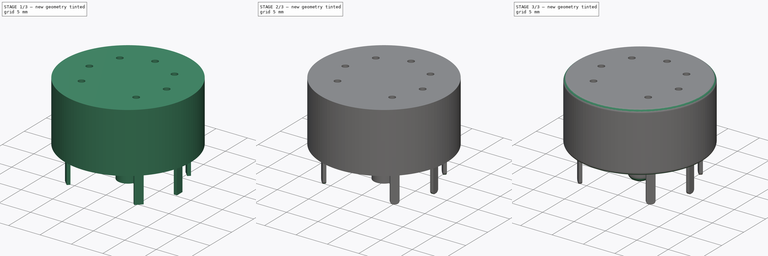
[diagram: build sequence overview — one tinted view per stage of 3, left to right]
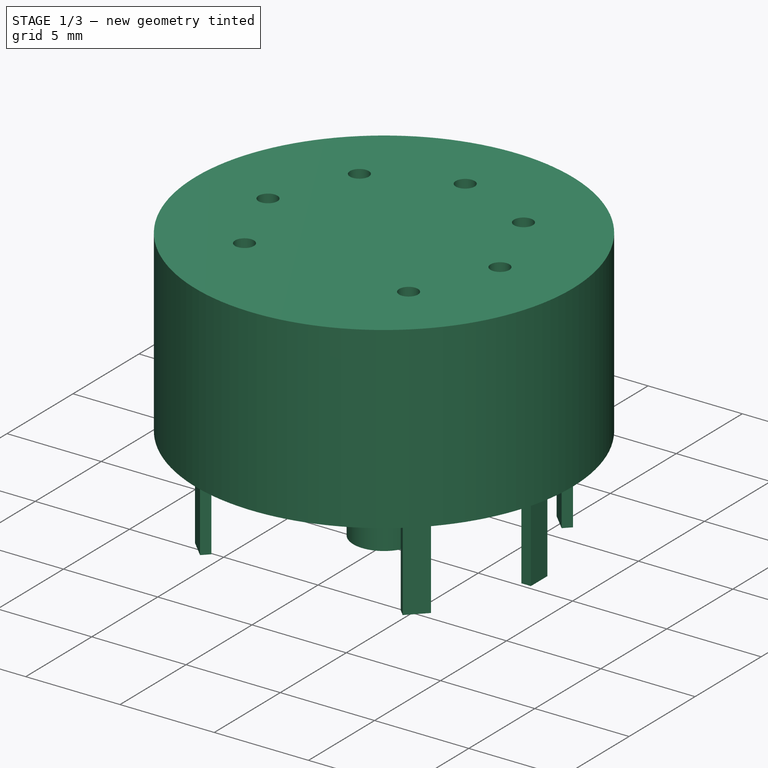
[diagram: stage 1 of 3 — iso view after this stage's code; geometry added in this stage tinted green]
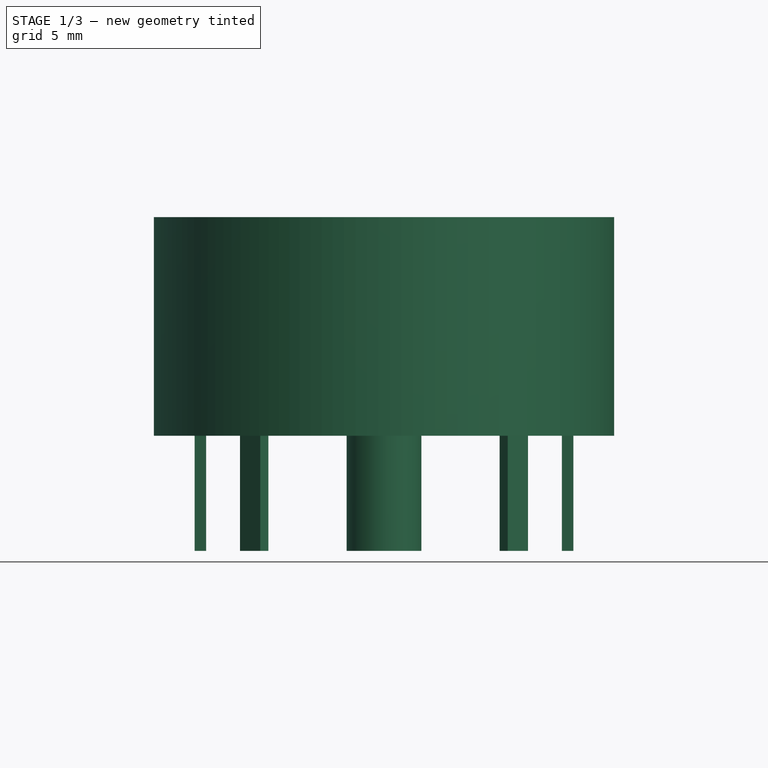
[diagram: stage 1 of 3 — front view after this stage's code; geometry added in this stage tinted green]
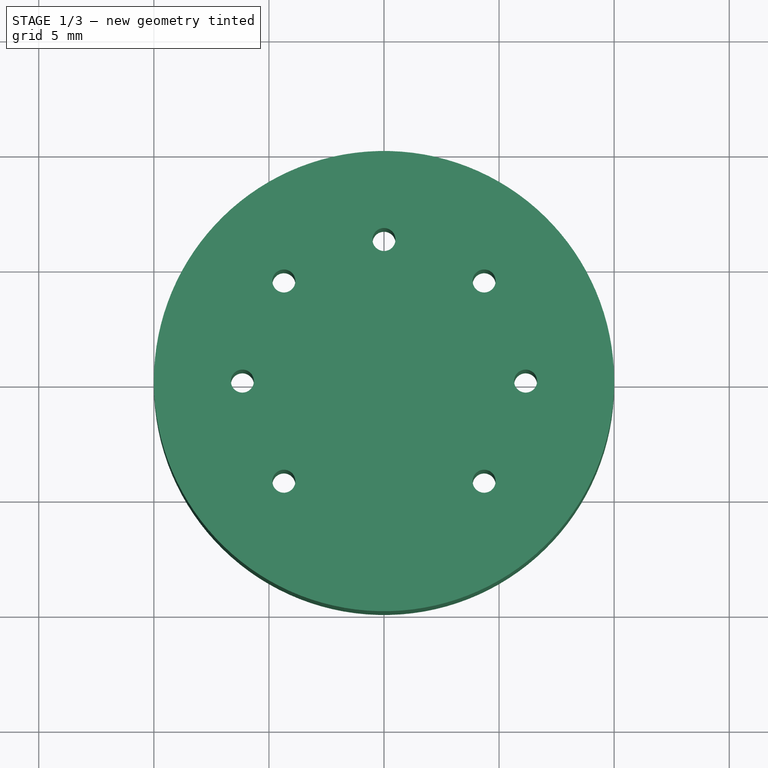
[diagram: stage 1 of 3 — top view after this stage's code; geometry added in this stage tinted green]
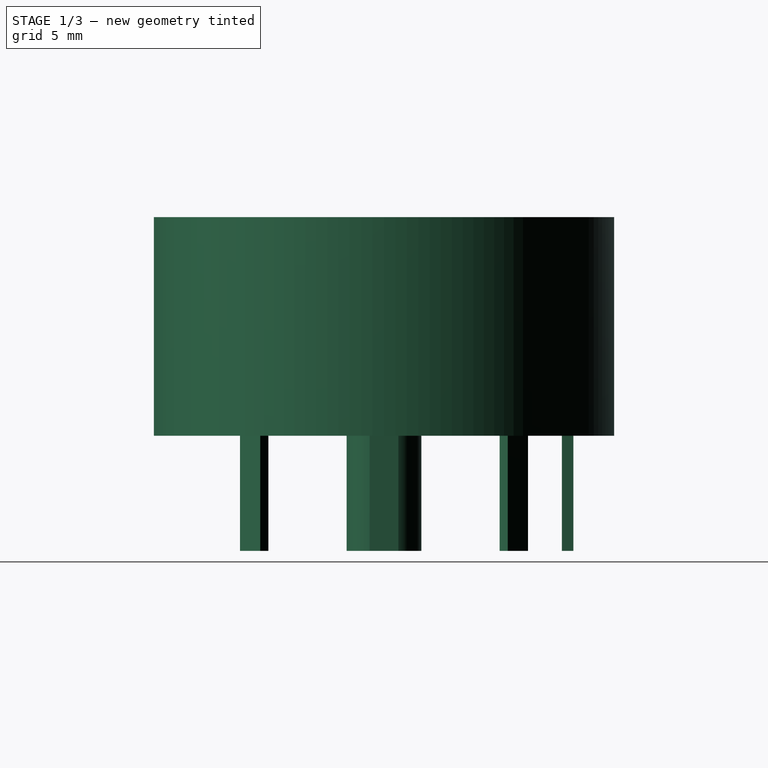
[diagram: stage 1 of 3 — right view after this stage's code; geometry added in this stage tinted green]
FCSTD DOCUMENT  (FreeCAD 0.19R)
Label: 7-pin socket
License: All rights reserved
LicenseURL: http://en.wikipedia.org/wiki/All_rights_reserved
objects: PartDesign::Fillet×4, Sketcher::SketchObject×2, PartDesign::Pad×2, PartDesign::Body×1
note: 15 computed .brp shape members not serialized (recipe doc carries the construction recipe); baked Part::Feature solids carry a one-line shape summary decoded from their .brp

FEATURE [Sketcher::SketchObject] Sketch
  FullyConstrained = false
  MapMode = 5
  Support = -> [XY_Plane]
  sketch-geometry (16):
    g0: Circle CenterX=0 CenterY=0 CenterZ=0 NormalX=0 NormalY=0 NormalZ=1 AngleXU=0 Radius=10
    g1: Circle CenterX=0 CenterY=0 CenterZ=0 NormalX=0 NormalY=0 NormalZ=1 AngleXU=0 Radius=6.153
    g2: LineSegment StartX=0 StartY=0 StartZ=0 EndX=4.35083 EndY=-4.35083 EndZ=0
    g3: LineSegment StartX=0 StartY=0 StartZ=0 EndX=6.153 EndY=1.1e-15 EndZ=0
    g4: LineSegment StartX=0 StartY=0 StartZ=0 EndX=4.35083 EndY=4.35083 EndZ=0
    g5: LineSegment StartX=0 StartY=0 StartZ=0 EndX=0 EndY=6.153 EndZ=0
    g6: LineSegment StartX=0 StartY=0 StartZ=0 EndX=-4.35083 EndY=4.35083 EndZ=0
    g7: LineSegment StartX=0 StartY=0 StartZ=0 EndX=-6.153 EndY=8e-16 EndZ=0
    g8: LineSegment StartX=0 StartY=0 StartZ=0 EndX=-4.35083 EndY=-4.35083 EndZ=0
    g9: Circle CenterX=4.35083 CenterY=-4.35083 CenterZ=0 NormalX=0 NormalY=0 NormalZ=1 AngleXU=0 Radius=0.5
    g10: Circle CenterX=6.153 CenterY=1.1e-15 CenterZ=0 NormalX=0 NormalY=0 NormalZ=1 AngleXU=0 Radius=0.5
    g11: Circle CenterX=4.35083 CenterY=4.35083 CenterZ=0 NormalX=0 NormalY=0 NormalZ=1 AngleXU=0 Radius=0.5
    g12: Circle CenterX=0 CenterY=6.153 CenterZ=0 NormalX=0 NormalY=0 NormalZ=1 AngleXU=0 Radius=0.5
    g13: Circle CenterX=-4.35083 CenterY=4.35083 CenterZ=0 NormalX=0 NormalY=0 NormalZ=1 AngleXU=0 Radius=0.5
    g14: Circle CenterX=-6.153 CenterY=8e-16 CenterZ=0 NormalX=0 NormalY=0 NormalZ=1 AngleXU=0 Radius=0.5
    g15: Circle CenterX=-4.35083 CenterY=-4.35083 CenterZ=0 NormalX=0 NormalY=0 NormalZ=1 AngleXU=0 Radius=0.5
  constraints (38):
    c: Coincident(g0,g-1)
    c: Diameter(g0) = 20
    c: Coincident(g1,g0)
    c: Coincident(g2,g0)
    c: PointOnObject(g2,g1)
    c: Coincident(g3,g0)
    c: PointOnObject(g3,g1)
    c: Coincident(g4,g0)
    c: PointOnObject(g4,g1)
    c: Coincident(g5,g0)
    c: PointOnObject(g5,g1)
    c: Coincident(g6,g0)
    c: PointOnObject(g6,g1)
    c: Coincident(g7,g0)
    c: PointOnObject(g7,g1)
    c: Coincident(g8,g0)
    c: PointOnObject(g8,g1)
    c: Angle(g2,g3) = 0.785398
    c: Angle(g3,g4) = 0.785398
    c: Angle(g4,g5) = 0.785398
    c: Angle(g5,g6) = 0.785398
    c: Angle(g6,g7) = 0.785398
    c: Angle(g7,g8) = 0.785398
    c: PointOnObject(g5,g-2)
    c: Coincident(g9,g2)
    c: Coincident(g10,g3)
    c: Coincident(g11,g4)
    c: Coincident(g12,g5)
    c: Coincident(g13,g6)
    c: Coincident(g14,g7)
    c: Coincident(g15,g8)
    c: Equal(g9,g10)
    c: Equal(g10,g11)
    c: Equal(g11,g12)
    c: Equal(g12,g13)
    c: Equal(g13,g14)
    c: Equal(g14,g15)
    c: Diameter(g9) = 1
FEATURE [PartDesign::Pad] Pad
  Direction = (1,1,1)
  Length = 9.5
  Length2 = 100
  Profile = -> Sketch
  Type = 0
FEATURE [Sketcher::SketchObject] Sketch001
  FullyConstrained = true
  MapMode = 5
  Placement = pos=(0,0,0) rot=(1,0,0;3.14159rad)
  Support = -> [Pad]
  sketch-geometry (37):
    g0: Circle CenterX=0 CenterY=0 CenterZ=0 NormalX=0 NormalY=0 NormalZ=1 AngleXU=0 Radius=8.25
    g1: LineSegment StartX=0 StartY=0 StartZ=0 EndX=-5.83363 EndY=5.83363 EndZ=0
    g2: LineSegment StartX=0 StartY=0 StartZ=0 EndX=-8.25 EndY=2.4e-15 EndZ=0
    g3: LineSegment StartX=0 StartY=0 StartZ=0 EndX=-5.83363 EndY=-5.83363 EndZ=0
    g4: LineSegment StartX=0 StartY=0 StartZ=0 EndX=0 EndY=-8.25 EndZ=0
    g5: LineSegment StartX=0 StartY=0 StartZ=0 EndX=5.83363 EndY=-5.83363 EndZ=0
    g6: LineSegment StartX=0 StartY=0 StartZ=0 EndX=8.25 EndY=0 EndZ=0
    g7: LineSegment StartX=0 StartY=0 StartZ=0 EndX=5.83363 EndY=5.83363 EndZ=0
    g8: LineSegment StartX=-6.25881 StartY=5.37492 StartZ=0 EndX=-5.37492 EndY=6.25881 EndZ=0
    g9: LineSegment StartX=-5.37492 StartY=6.25881 StartZ=0 EndX=-5.02137 EndY=5.90525 EndZ=0
    g10: LineSegment StartX=-5.02137 StartY=5.90525 StartZ=0 EndX=-5.90525 EndY=5.02137 EndZ=0
    g11: LineSegment StartX=-5.90525 StartY=5.02137 StartZ=0 EndX=-6.25881 EndY=5.37492 EndZ=0
    g12: LineSegment StartX=-8.22629 StartY=0.625 StartZ=0 EndX=-8.22629 EndY=-0.625 EndZ=0
    g13: LineSegment StartX=-8.22629 StartY=-0.625 StartZ=0 EndX=-7.72629 EndY=-0.625 EndZ=0
    g14: LineSegment StartX=-7.72629 StartY=-0.625 StartZ=0 EndX=-7.72629 EndY=0.625 EndZ=0
    g15: LineSegment StartX=-7.72629 StartY=0.625 StartZ=0 EndX=-8.22629 EndY=0.625 EndZ=0
    g16: LineSegment StartX=-6.25881 StartY=-5.37492 StartZ=0 EndX=-5.37492 EndY=-6.25881 EndZ=0
    g17: LineSegment StartX=-5.37492 StartY=-6.25881 StartZ=0 EndX=-5.02137 EndY=-5.90525 EndZ=0
    g18: LineSegment StartX=-5.02137 StartY=-5.90525 StartZ=0 EndX=-5.90525 EndY=-5.02137 EndZ=0
    g19: LineSegment StartX=-5.90525 StartY=-5.02137 StartZ=0 EndX=-6.25881 EndY=-5.37492 EndZ=0
    g20: LineSegment StartX=-0.625 StartY=-7.72629 StartZ=0 EndX=0.625 EndY=-7.72629 EndZ=0
    g21: LineSegment StartX=0.625 StartY=-7.72629 StartZ=0 EndX=0.625 EndY=-8.22629 EndZ=0
    g22: LineSegment StartX=0.625 StartY=-8.22629 StartZ=0 EndX=-0.625 EndY=-8.22629 EndZ=0
    g23: LineSegment StartX=-0.625 StartY=-8.22629 StartZ=0 EndX=-0.625 EndY=-7.72629 EndZ=0
    g24: LineSegment StartX=5.90525 StartY=-5.02137 StartZ=0 EndX=5.02137 EndY=-5.90525 EndZ=0
    g25: LineSegment StartX=5.02137 StartY=-5.90525 StartZ=0 EndX=5.37492 EndY=-6.25881 EndZ=0
    g26: LineSegment StartX=5.37492 StartY=-6.25881 StartZ=0 EndX=6.25881 EndY=-5.37492 EndZ=0
    g27: LineSegment StartX=6.25881 StartY=-5.37492 StartZ=0 EndX=5.90525 EndY=-5.02137 EndZ=0
    g28: LineSegment StartX=8.22629 StartY=0.625 StartZ=0 EndX=8.22629 EndY=-0.625 EndZ=0
    g29: LineSegment StartX=8.22629 StartY=-0.625 StartZ=0 EndX=7.72629 EndY=-0.625 EndZ=0
    g30: LineSegment StartX=7.72629 StartY=-0.625 StartZ=0 EndX=7.72629 EndY=0.625 EndZ=0
    g31: LineSegment StartX=7.72629 StartY=0.625 StartZ=0 EndX=8.22629 EndY=0.625 EndZ=0
    g32: LineSegment StartX=5.37492 StartY=6.25881 StartZ=0 EndX=6.25881 EndY=5.37492 EndZ=0
    g33: LineSegment StartX=6.25881 StartY=5.37492 StartZ=0 EndX=5.90525 EndY=5.02137 EndZ=0
    g34: LineSegment StartX=5.90525 StartY=5.02137 StartZ=0 EndX=5.02137 EndY=5.90525 EndZ=0
    g35: LineSegment StartX=5.02137 StartY=5.90525 StartZ=0 EndX=5.37492 EndY=6.25881 EndZ=0
    g36: Circle CenterX=0 CenterY=0 CenterZ=0 NormalX=0 NormalY=0 NormalZ=1 AngleXU=0 Radius=1.625
  constraints (102):
    c: Coincident(g0,g-1)
    c: Coincident(g1,g0)
    c: PointOnObject(g1,g0)
    c: Coincident(g2,g0)
    c: PointOnObject(g2,g0)
    c: Coincident(g3,g0)
    c: PointOnObject(g3,g0)
    c: Coincident(g4,g0)
    c: PointOnObject(g4,g0)
    c: Coincident(g5,g0)
    c: PointOnObject(g5,g0)
    c: Coincident(g6,g0)
    c: PointOnObject(g6,g0)
    c: Coincident(g7,g0)
    c: PointOnObject(g7,g0)
    c: Angle(g1,g2) = 0.785398
    c: Angle(g2,g3) = 0.785398
    c: Angle(g3,g4) = 0.785398
    c: Angle(g4,g5) = 0.785398
    c: Angle(g5,g6) = 0.785398
    c: Angle(g6,g7) = 0.785398
    c: PointOnObject(g4,g-2)
    c: Diameter(g0) = 16.5
    c: PointOnObject(g8,g0)
    c: PointOnObject(g8,g0)
    c: Coincident(g8,g9)
    c: Coincident(g9,g10)
    c: Coincident(g10,g11)
    c: Coincident(g11,g8)
    c: Coincident(g12,g13)
    c: Coincident(g13,g14)
    c: Coincident(g14,g15)
    c: Coincident(g15,g12)
    c: Coincident(g16,g17)
    c: Coincident(g17,g18)
    c: Coincident(g18,g19)
    c: Coincident(g19,g16)
    c: Coincident(g20,g21)
    c: Coincident(g21,g22)
    c: Coincident(g22,g23)
    c: Coincident(g23,g20)
    c: Vertical(g23)
    c: Coincident(g24,g25)
    c: Coincident(g25,g26)
    c: Coincident(g26,g27)
    c: Coincident(g27,g24)
    c: Coincident(g28,g29)
    c: Coincident(g29,g30)
    c: Coincident(g30,g31)
    c: Coincident(g31,g28)
    c: Coincident(g32,g33)
    c: Coincident(g33,g34)
    c: Coincident(g34,g35)
    c: Coincident(g35,g32)
    c: Symmetric(g10,g9,g1)
    c: Perpendicular(g10,g11)
    c: Perpendicular(g10,g9)
    c: Symmetric(g14,g13,g2)
    c: Perpendicular(g14,g13)
    c: Perpendicular(g14,g15)
    c: PointOnObject(g12,g0)
    c: PointOnObject(g12,g0)
    c: PointOnObject(g16,g0)
    c: PointOnObject(g16,g0)
    c: Perpendicular(g18,g19)
    c: Perpendicular(g17,g18)
    c: Symmetric(g17,g18,g3)
    c: PointOnObject(g22,g0)
    c: PointOnObject(g21,g0)
    c: Symmetric(g20,g20,g4)
    c: Perpendicular(g20,g21)
    c: Symmetric(g24,g24,g5)
    c: PointOnObject(g25,g0)
    c: PointOnObject(g26,g0)
    c: Perpendicular(g25,g24)
    c: Perpendicular(g24,g27)
    c: Symmetric(g29,g30,g6)
    c: PointOnObject(g28,g0)
    c: PointOnObject(g28,g0)
    c: Perpendicular(g30,g31)
    c: Perpendicular(g30,g29)
    c: PointOnObject(g32,g0)
    c: PointOnObject(g32,g0)
    c: Symmetric(g33,g34,g7)
    c: Perpendicular(g34,g33)
    c: Perpendicular(g34,g35)
    c: Equal(g35,g31)
    c: Equal(g31,g27)
    c: Equal(g27,g21)
    c: Equal(g21,g17)
    c: Equal(g17,g13)
    c: Equal(g13,g11)
    c: Equal(g10,g14)
    c: Equal(g14,g18)
    c: Equal(g18,g20)
    c: Equal(g20,g24)
    c: Equal(g24,g30)
    c: Equal(g30,g34)
    c: Distance(g33) = 0.5
    c: Distance(g34) = 1.25
    c: Coincident(g36,g-1)
    c: Diameter(g36) = 3.25
FEATURE [PartDesign::Pad] Pad001
  BaseFeature = -> Pad
  Direction = (1,1,1)
  Length = 5
  Length2 = 100
  Profile = -> Sketch001
  Type = 0
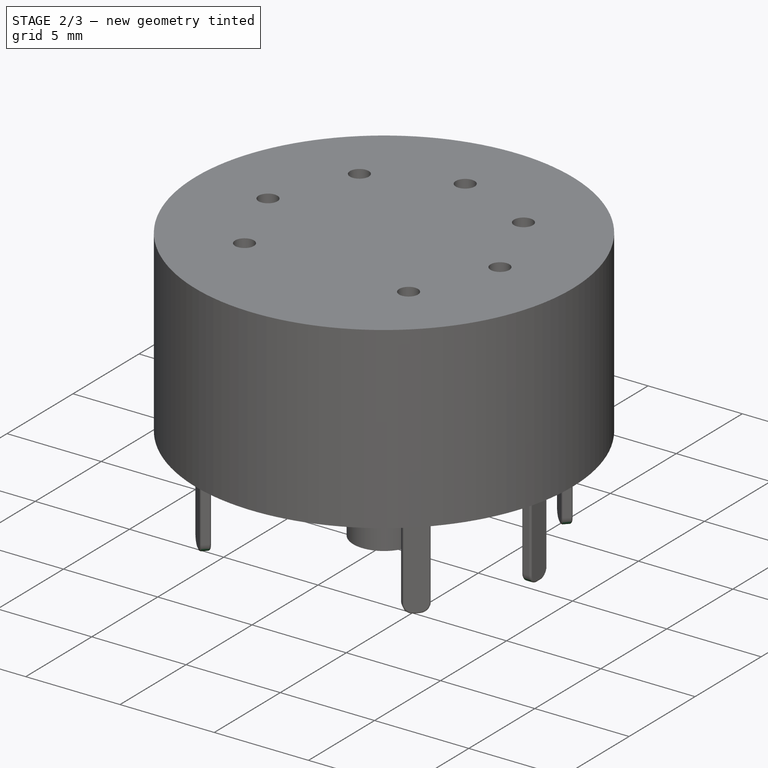
[diagram: stage 2 of 3 — iso view after this stage's code; geometry added in this stage tinted green]
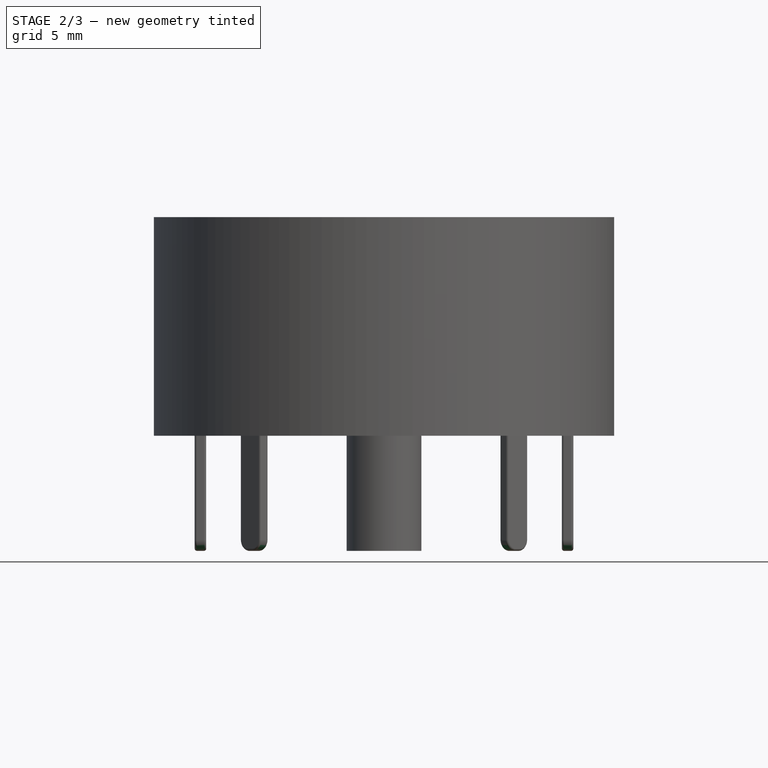
[diagram: stage 2 of 3 — front view after this stage's code; geometry added in this stage tinted green]
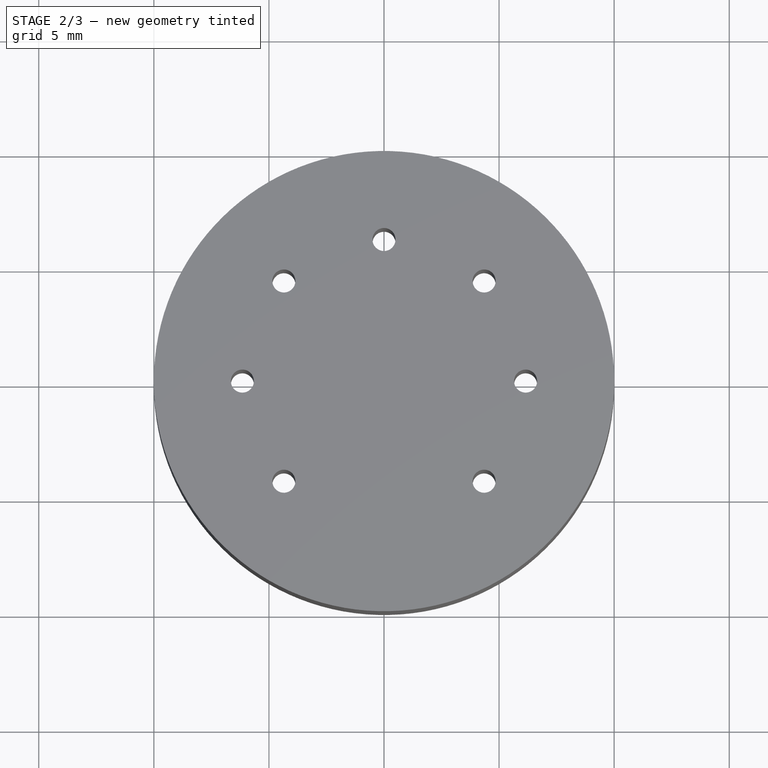
[diagram: stage 2 of 3 — top view after this stage's code; geometry added in this stage tinted green]
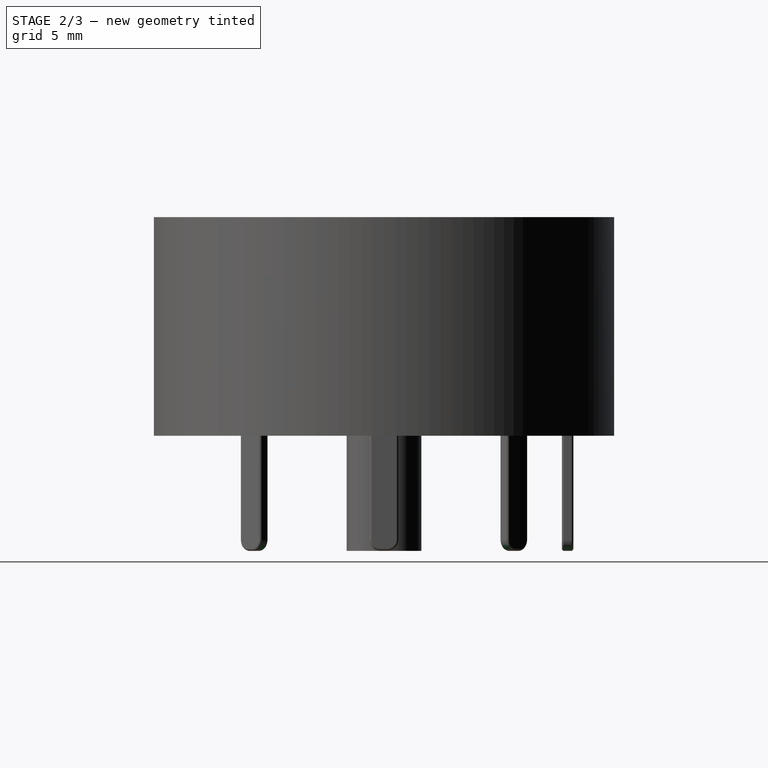
[diagram: stage 2 of 3 — right view after this stage's code; geometry added in this stage tinted green]
FEATURE [PartDesign::Fillet] Fillet
  Base = -> Pad001 [Edge72,Edge69,Edge84,Edge81,Edge106,Edge110,Edge100,Edge103,Edge92,Edge88,Edge62,Edge58,Edge54,Edge51]
  BaseFeature = -> Pad001
  Radius = 0.49
  SupportTransform = false
FEATURE [PartDesign::Fillet] Fillet001
  Base = -> Fillet [Edge1,Edge7,Edge63,Edge59,Edge102,Edge104,Edge118,Edge127,Edge137,Edge133,Edge94,Edge91,Edge70,Edge79]
  BaseFeature = -> Fillet
  Radius = 0.1
  SupportTransform = false
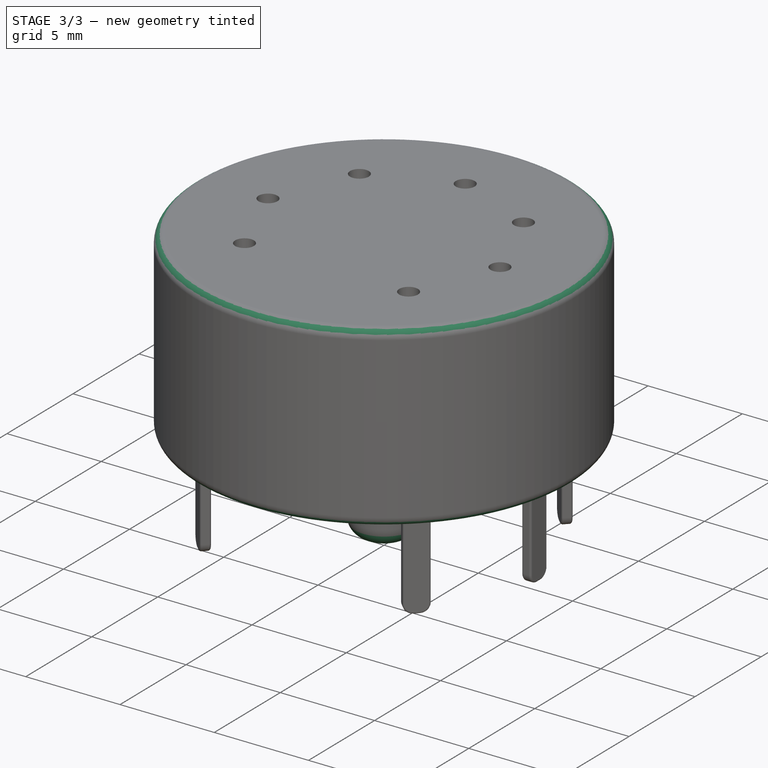
[diagram: stage 3 of 3 — iso view after this stage's code; geometry added in this stage tinted green]
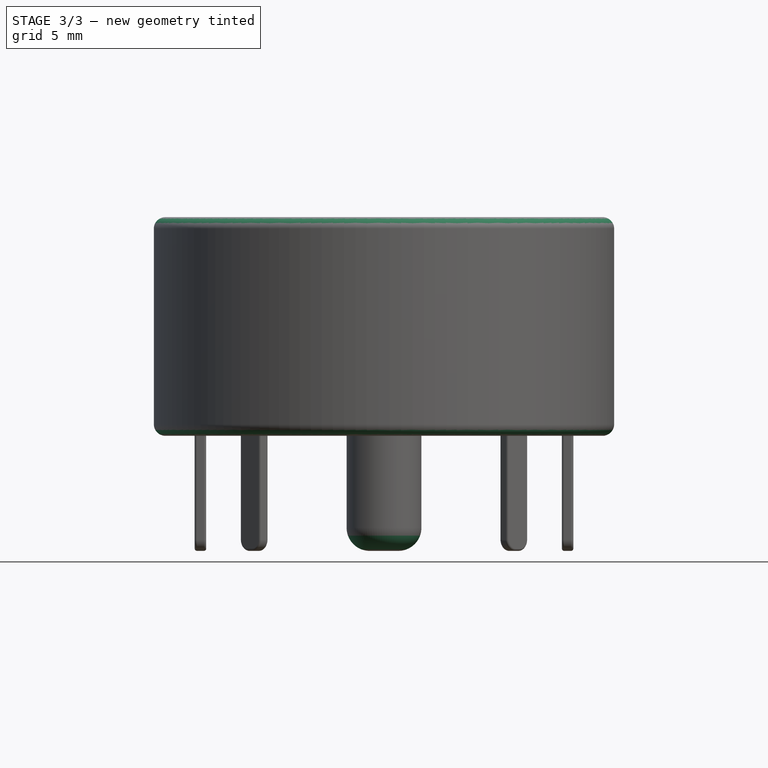
[diagram: stage 3 of 3 — front view after this stage's code; geometry added in this stage tinted green]
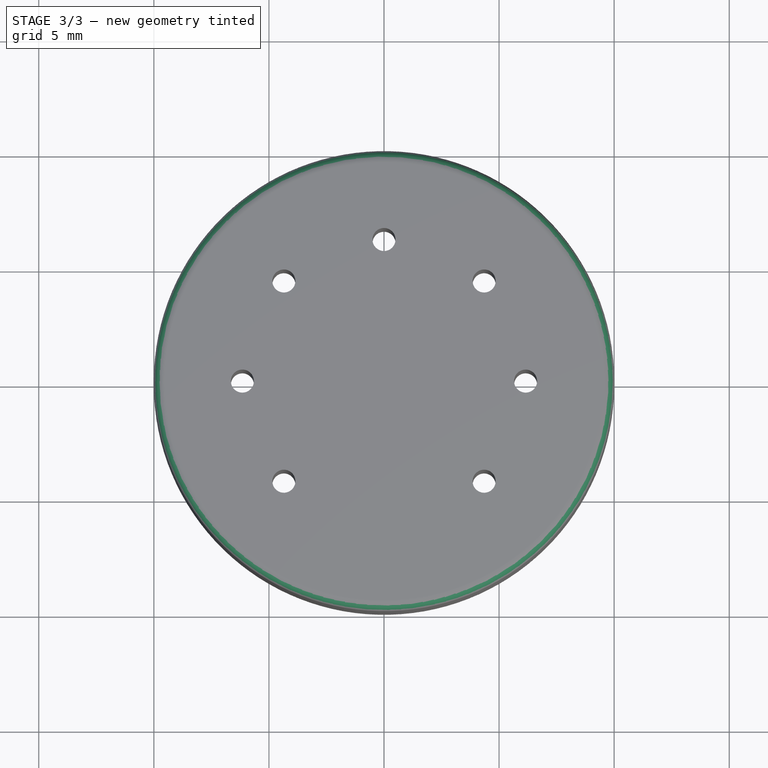
[diagram: stage 3 of 3 — top view after this stage's code; geometry added in this stage tinted green]
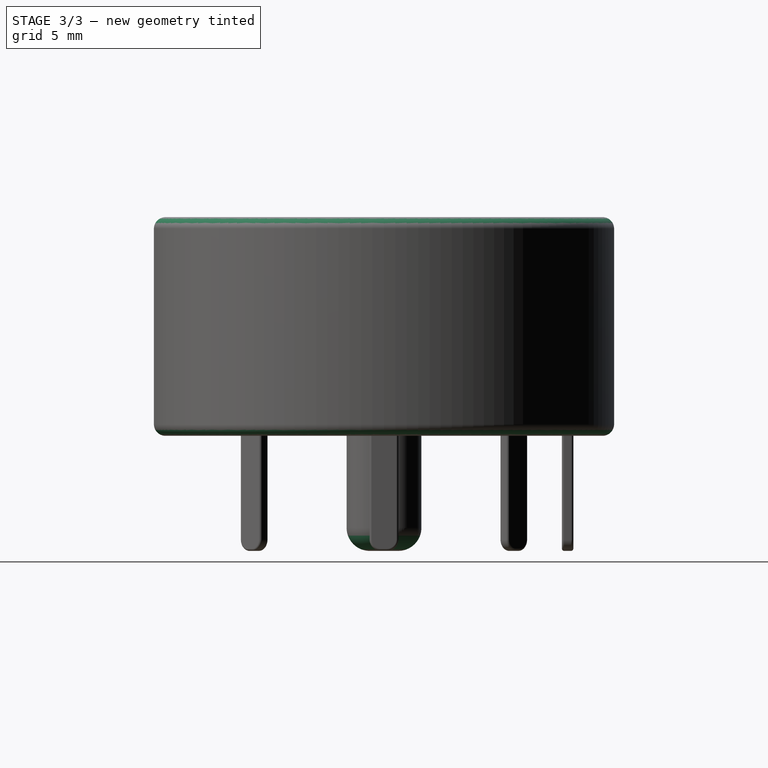
[diagram: stage 3 of 3 — right view after this stage's code; geometry added in this stage tinted green]
FEATURE [PartDesign::Fillet] Fillet002
  Base = -> Fillet001 [Edge100]
  BaseFeature = -> Fillet001
  Radius = 1
  SupportTransform = false
FEATURE [PartDesign::Fillet] Fillet003
  Base = -> Fillet002 [Edge14,Edge91]
  BaseFeature = -> Fillet002
  Radius = 0.5
  SupportTransform = false
FEATURE [PartDesign::Body] Body
  Group = -> [Sketch,Pad,Sketch001,Pad001,Fillet,Fillet001,Fillet002,Fillet003]
  Origin = -> Origin
  Tip = -> Fillet003
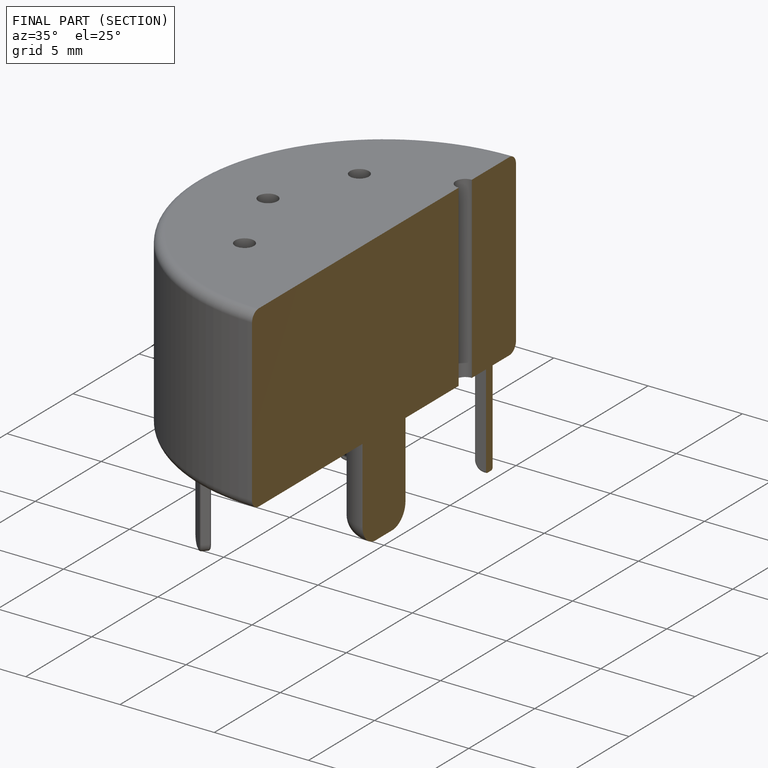
[diagram: finished part — half-section view (interior)]
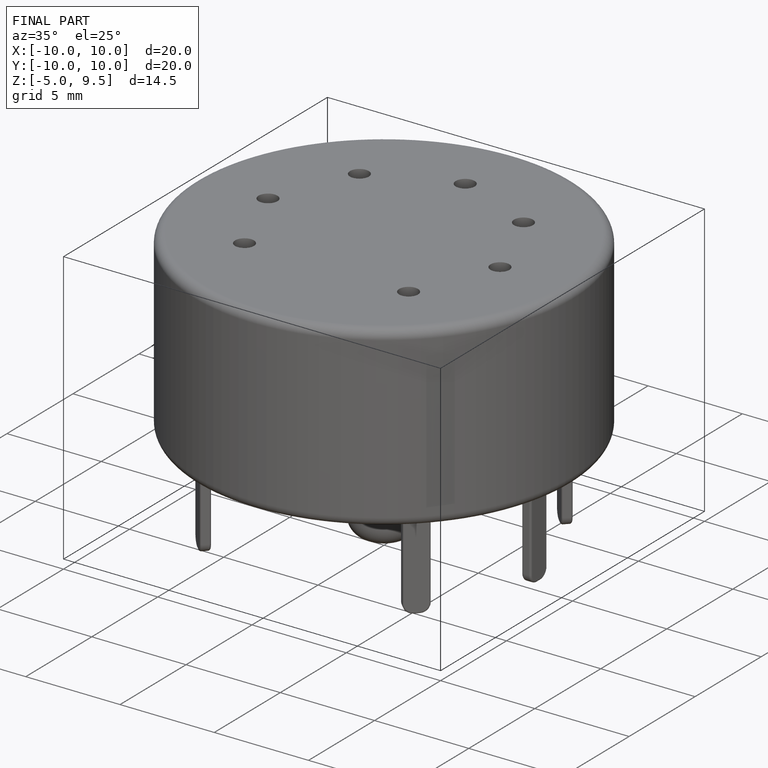
[diagram: finished part — iso view with bounding-box wireframe]
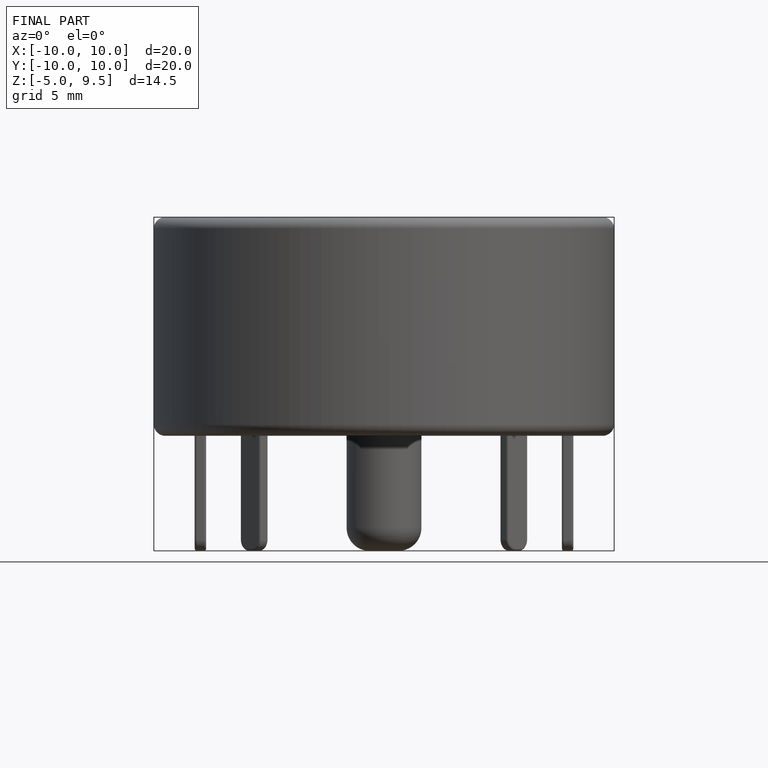
[diagram: finished part — front view with bounding-box wireframe]
